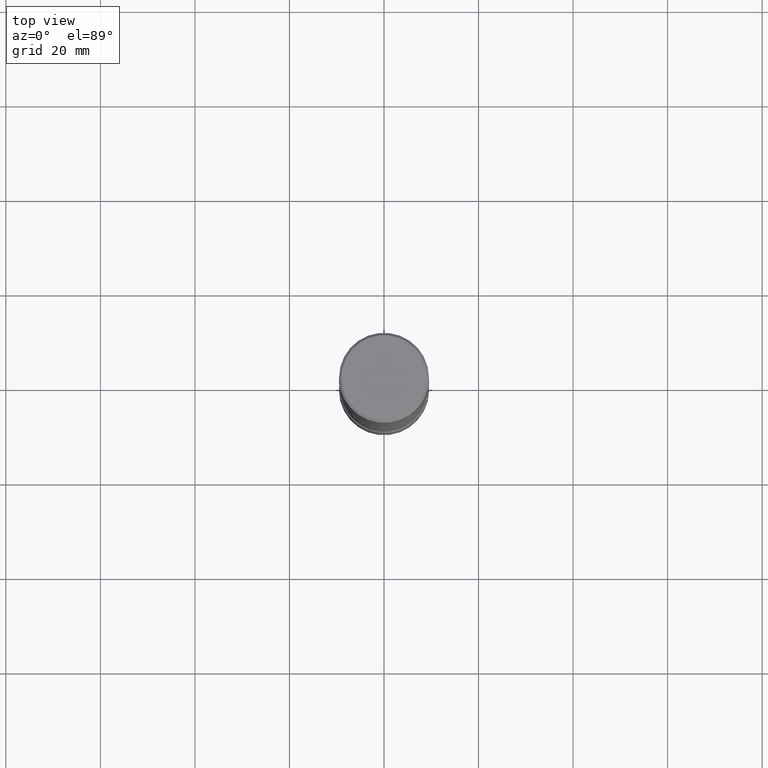
[diagram: clean part render]
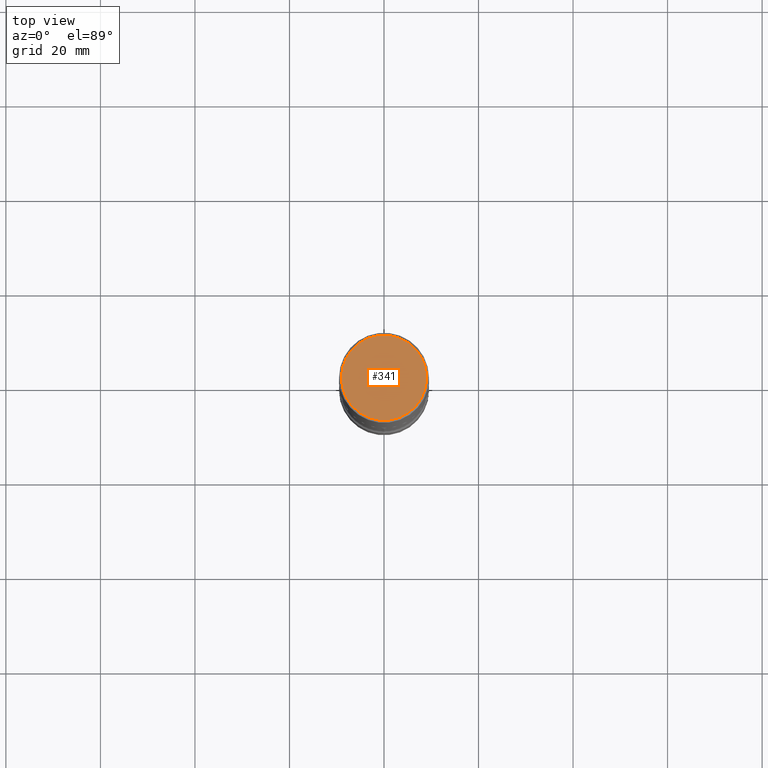
[diagram: same view with one face highlighted and labeled with its STEP entity id]
A machine part, top view. The second image highlights one B-rep face of the part: STEP entity #341.
In plain terms, the highlighted planar face has unit normal (0, -0, -1).
Its self-contained STEP definition (entity closure, byte-faithful):
#23 = ORIENTED_EDGE ( 'NONE', *, *, #168, .T. ) ;
#43 = CARTESIAN_POINT ( 'NONE',  ( 0.3549999999999997047, -2.538996582575039076E-15, 4.268512490117958041E-18 ) ) ;
#44 = VERTEX_POINT ( 'NONE', #43 ) ;
#168 = EDGE_CURVE ( 'NONE', #783, #44, #266, .T. ) ;
#182 = AXIS2_PLACEMENT_3D ( 'NONE', #421, #370, #689 ) ;
#193 = DIRECTION ( 'NONE',  ( -2.445468806185136597E-29, 3.491481338843145583E-15, 1.000000000000000000 ) ) ;
#233 = AXIS2_PLACEMENT_3D ( 'NONE', #410, #537, #791 ) ;
#266 = CIRCLE ( 'NONE', #674, 0.3549999999999997047 ) ;
#339 = PLANE ( 'NONE',  #233 ) ;
#341 = ADVANCED_FACE ( 'NONE', ( #533 ), #339, .F. ) ;
#370 = DIRECTION ( 'NONE',  ( -2.445468806185136597E-29, 3.491481338843145583E-15, 1.000000000000000000 ) ) ;
#380 = EDGE_LOOP ( 'NONE', ( #23, #443 ) ) ;
#407 = EDGE_CURVE ( 'NONE', #44, #783, #433, .T. ) ;
#410 = CARTESIAN_POINT ( 'NONE',  ( 2.478951750578622237E-15, 0.3549999999999997047, -1.237341619044265441E-15 ) ) ;
#421 = CARTESIAN_POINT ( 'NONE',  ( -1.043851414335219820E-46, 1.490343170380447200E-32, 4.268512490100411279E-18 ) ) ;
#433 = CIRCLE ( 'NONE', #182, 0.3549999999999997047 ) ;
#443 = ORIENTED_EDGE ( 'NONE', *, *, #407, .T. ) ;
#533 = FACE_OUTER_BOUND ( 'NONE', #380, .T. ) ;
#537 = DIRECTION ( 'NONE',  ( 2.438088387897960049E-29, -3.491481338843145188E-15, -1.000000000000000000 ) ) ;
#598 = CARTESIAN_POINT ( 'NONE',  ( -0.3549999999999997047, 2.513866563967053491E-15, 4.268512490082953109E-18 ) ) ;
#612 = CARTESIAN_POINT ( 'NONE',  ( -1.043851414335219820E-46, 1.490343170380447200E-32, 4.268512490100411279E-18 ) ) ;
#639 = DIRECTION ( 'NONE',  ( 1.000000000000000000, -6.982962677686265922E-15, 4.876231632511992107E-29 ) ) ;
#674 = AXIS2_PLACEMENT_3D ( 'NONE', #612, #193, #639 ) ;
#689 = DIRECTION ( 'NONE',  ( 1.000000000000000000, -6.982962677686265922E-15, 4.876231632511992107E-29 ) ) ;
#783 = VERTEX_POINT ( 'NONE', #598 ) ;
#791 = DIRECTION ( 'NONE',  ( -1.000000000000000000, 6.982962677686265922E-15, -4.876176775795935793E-29 ) ) ;